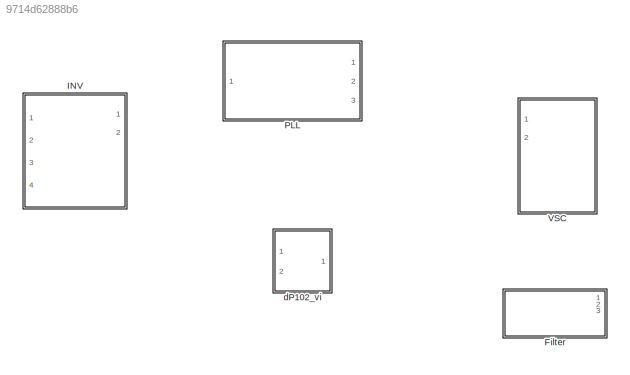
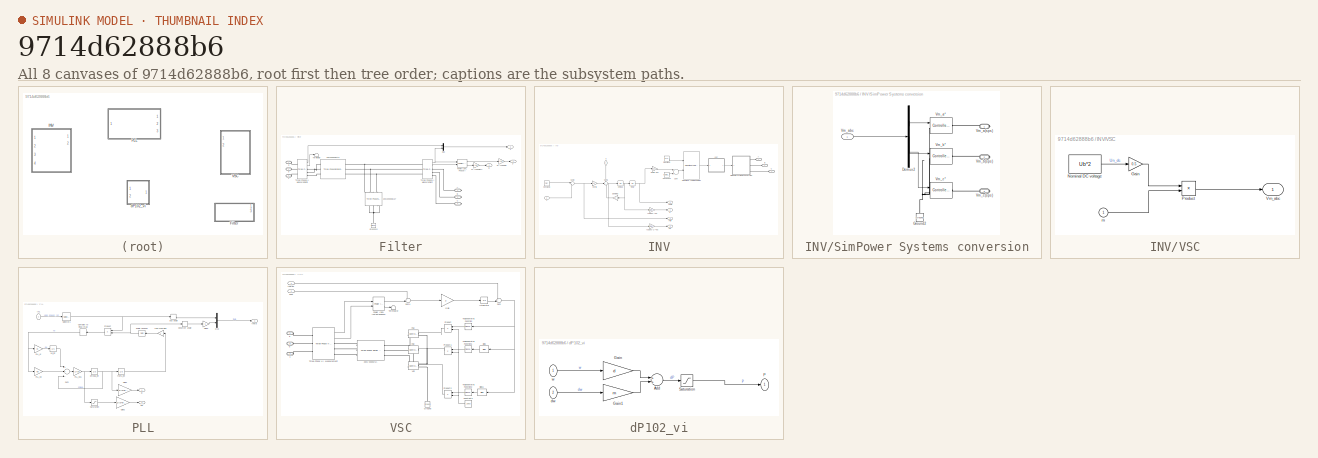
[diagram: thumbnail index - all 8 canvases of the model, root first then tree order]
MODEL slx_9714d62888b6
KIND library
CONFIG AbsTol = auto
CONFIG EnableMultiTasking = on
CONFIG FixedStep = auto
CONFIG MaxStep = auto
CONFIG MinStep = auto
CONFIG RelTol = 1e-3
CONFIG SampleTimeConstraint = Unconstrained
CONFIG Solver = ode45
CONFIG SolverName = ode45
CONFIG StartTime = 0.0
CONFIG StopTime = 10.0
BLOCK [SubSystem] Filter
  Ports = [0, 3, 0, 0, 0, 3, 3]
  RequestExecContextInheritance = off
  Variant = off
BLOCK [Reference] Filter/20kV 2000MVA11  REF=powerlib/Elements/Three-Phase
Series RLC Branch
  AttributesFormatString = \n
  Ports = [0, 0, 0, 0, 0, 3, 3]
  SourceBlock = powerlib/Elements/Three-Phase\nSeries RLC Branch
  SourceProductBaseCode = PS
  SourceProductName = Simscape Power Systems
  SourceType = Three-Phase Series RLC Branch
BLOCK [Reference] Filter/20kV 2000MVA27  REF=powerlib/Elements/Three-Phase
Series RLC Branch
  AttributesFormatString = \n
  Ports = [0, 0, 0, 0, 0, 3, 3]
  SourceBlock = powerlib/Elements/Three-Phase\nSeries RLC Branch
  SourceProductBaseCode = PS
  SourceProductName = Simscape Power Systems
  SourceType = Three-Phase Series RLC Branch
BLOCK [PMIOPort] Filter/A
  Port = 4
  Side = Right
  Tag = PMCPort
BLOCK [PMIOPort] Filter/B
  Port = 5
  Side = Right
  Tag = PMCPort
BLOCK [PMIOPort] Filter/C
  Port = 6
  Side = Right
  Tag = PMCPort
BLOCK [Reference] Filter/Ground13  REF=powerlib/Elements/Ground
  Ports = [0, 0, 0, 0, 0, 1]
  SourceBlock = powerlib/Elements/Ground
  SourceProductBaseCode = PS
  SourceProductName = Simscape Power Systems
  SourceType = Ground
BLOCK [Mux] Filter/Mux
  DisplayOption = bar
  Inputs = 2
  Ports = [2, 1]
BLOCK [Outport] Filter/P
  IconDisplay = Port number
BLOCK [Reference] Filter/Power (3ph, Phasor)  REF=powerlib_meascontrol/Measurements/Power
(3ph, Phasor)
  Ports = [2, 2]
  SourceBlock = powerlib_meascontrol/Measurements/Power\n(3ph, Phasor)
  SourceProductBaseCode = PS
  SourceProductName = Simscape Power Systems
  SourceType = Power (3ph, Phasor)
BLOCK [Outport] Filter/Q
  IconDisplay = Port number
  Port = 2
BLOCK [Terminator] Filter/Terminator
BLOCK [Reference] Filter/Three-Phase V-I Measurement  REF=powerlib/Measurements/Three-Phase
V-I Measurement
  Ports = [0, 2, 0, 0, 0, 3, 3]
  SourceBlock = powerlib/Measurements/Three-Phase\nV-I Measurement
  SourceProductBaseCode = PS
  SourceProductName = Simscape Power Systems
  SourceType = Three-Phase VI Measurement
BLOCK [Reference] Filter/Three-Phase V-I Measurement1  REF=powerlib/Measurements/Three-Phase
V-I Measurement
  Ports = [0, 2, 0, 0, 0, 3, 3]
  SourceBlock = powerlib/Measurements/Three-Phase\nV-I Measurement
  SourceProductBaseCode = PS
  SourceProductName = Simscape Power Systems
  SourceType = Three-Phase VI Measurement
BLOCK [Gain] Filter/W->100MW
  Gain = 1e-8
  OutDataTypeStr = Inherit: Inherit via internal rule
  ParamDataTypeStr = Inherit: Inherit via internal rule
  SaturateOnIntegerOverflow = off
BLOCK [Gain] Filter/W->100MW1
  Gain = 1e-8
  OutDataTypeStr = Inherit: Inherit via internal rule
  ParamDataTypeStr = Inherit: Inherit via internal rule
  SaturateOnIntegerOverflow = off
BLOCK [PMIOPort] Filter/a
  Port = 1
  Side = Left
BLOCK [PMIOPort] Filter/b
  Port = 2
  Side = Left
BLOCK [PMIOPort] Filter/c
  Port = 3
  Side = Left
BLOCK [Outport] Filter/v
  IconDisplay = Port number
  Port = 3
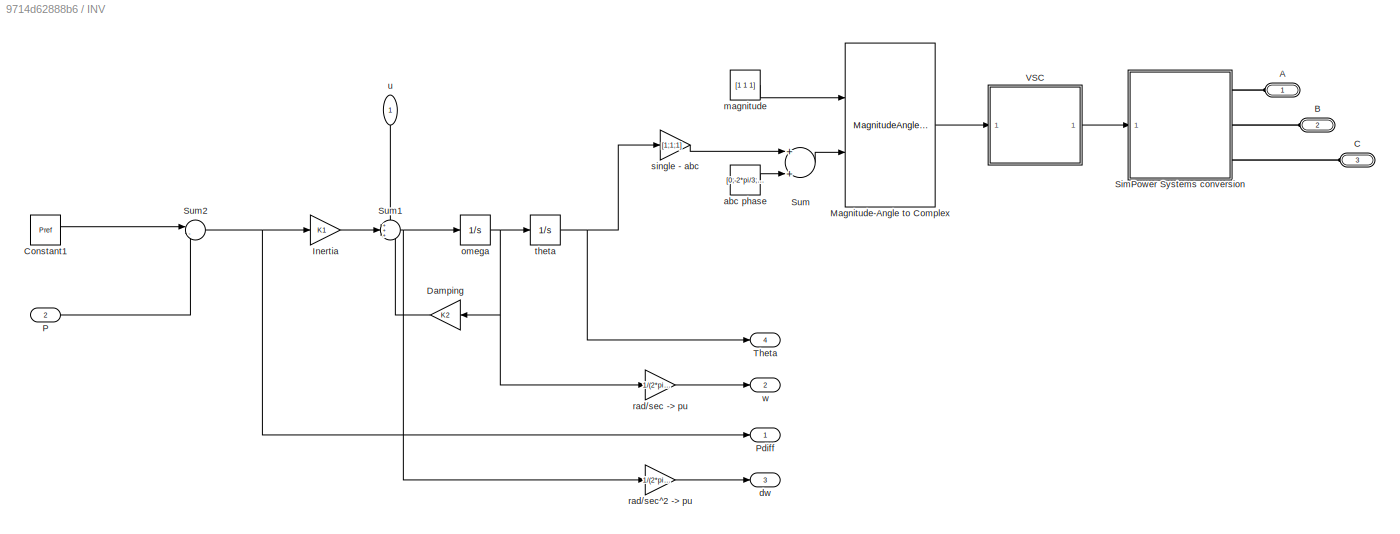
BLOCK [SubSystem] INV
  Ports = [2, 4, 0, 0, 0, 3]
  RequestExecContextInheritance = off
  Variant = off
BLOCK [PMIOPort] INV/A
  Port = 1
  Side = Left
  Tag = PMCPort
BLOCK [PMIOPort] INV/B
  Port = 2
  Side = Left
  Tag = PMCPort
BLOCK [PMIOPort] INV/C
  Port = 3
  Side = Left
  Tag = PMCPort
BLOCK [Constant] INV/Constant1
  Value = Pref
BLOCK [Gain] INV/Damping
  Gain = K2
  OutDataTypeStr = Inherit: Inherit via internal rule
  ParamDataTypeStr = Inherit: Inherit via internal rule
  SaturateOnIntegerOverflow = off
BLOCK [Gain] INV/Inertia
  Gain = K1
  OutDataTypeStr = Inherit: Inherit via internal rule
  ParamDataTypeStr = Inherit: Inherit via internal rule
  SaturateOnIntegerOverflow = off
BLOCK [MagnitudeAngleToComplex] INV/Magnitude-Angle to Complex
  Ports = [2, 1]
BLOCK [Inport] INV/P
  IconDisplay = Port number
  Port = 2
BLOCK [Outport] INV/Pdiff
  IconDisplay = Port number
BLOCK [SubSystem] INV/SimPower Systems conversion
  Ports = [1, 0, 0, 0, 0, 0, 3]
  RequestExecContextInheritance = off
  Variant = off
BLOCK [Demux] INV/SimPower Systems conversion/Demux2
  DisplayOption = bar
  Outputs = 3
  Ports = [1, 3]
BLOCK [Reference] INV/SimPower Systems conversion/Ground2  REF=powerlib/Elements/Ground
  Ports = [0, 0, 0, 0, 0, 1]
  SourceBlock = powerlib/Elements/Ground
  SourceProductBaseCode = PS
  SourceProductName = Simscape Power Systems
  SourceType = Ground
BLOCK [PMIOPort] INV/SimPower Systems conversion/Vm_a(sps)
  Port = 1
  Side = Right
BLOCK [Reference] INV/SimPower Systems conversion/Vm_a*  REF=powerlib/Electrical
Sources/Controlled Voltage Source
  Ports = [1, 0, 0, 0, 0, 1, 1]
  SourceBlock = powerlib/Electrical\nSources/Controlled Voltage Source
  SourceProductBaseCode = PS
  SourceProductName = Simscape Power Systems
  SourceType = Controlled Voltage Source
BLOCK [Inport] INV/SimPower Systems conversion/Vm_abc
  IconDisplay = Port number
BLOCK [PMIOPort] INV/SimPower Systems conversion/Vm_b(sps)
  Port = 2
  Side = Right
BLOCK [Reference] INV/SimPower Systems conversion/Vm_b*  REF=powerlib/Electrical
Sources/Controlled Voltage Source
  Ports = [1, 0, 0, 0, 0, 1, 1]
  SourceBlock = powerlib/Electrical\nSources/Controlled Voltage Source
  SourceProductBaseCode = PS
  SourceProductName = Simscape Power Systems
  SourceType = Controlled Voltage Source
BLOCK [PMIOPort] INV/SimPower Systems conversion/Vm_c(sps)
  Port = 3
  Side = Right
BLOCK [Reference] INV/SimPower Systems conversion/Vm_c*  REF=powerlib/Electrical
Sources/Controlled Voltage Source
  Ports = [1, 0, 0, 0, 0, 1, 1]
  SourceBlock = powerlib/Electrical\nSources/Controlled Voltage Source
  SourceProductBaseCode = PS
  SourceProductName = Simscape Power Systems
  SourceType = Controlled Voltage Source
BLOCK [Sum] INV/Sum
  InputSameDT = off
  OutDataTypeStr = Inherit: Inherit via internal rule
  Ports = [2, 1]
  SaturateOnIntegerOverflow = off
BLOCK [Sum] INV/Sum1
  IconShape = round
  InputSameDT = off
  Inputs = +++
  OutDataTypeStr = Inherit: Inherit via internal rule
  Ports = [3, 1]
  SaturateOnIntegerOverflow = off
BLOCK [Sum] INV/Sum2
  IconShape = round
  InputSameDT = off
  Inputs = |-+
  OutDataTypeStr = Inherit: Inherit via internal rule
  Ports = [2, 1]
  SaturateOnIntegerOverflow = off
BLOCK [Outport] INV/Theta
  IconDisplay = Port number
  Port = 4
BLOCK [SubSystem] INV/VSC
  Ports = [1, 1]
  RequestExecContextInheritance = off
  ShowPortLabels = none
  Variant = off
BLOCK [Gain] INV/VSC/Gain
  Gain = 0.5
  OutDataTypeStr = Inherit: Inherit via internal rule
  ParamDataTypeStr = Inherit: Inherit via internal rule
  SaturateOnIntegerOverflow = off
BLOCK [Constant] INV/VSC/Nominal DC voltage
  Value = Ub*2
BLOCK [Product] INV/VSC/Product
  InputSameDT = off
  OutDataTypeStr = Inherit: Inherit via internal rule
  Ports = [2, 1]
  SaturateOnIntegerOverflow = off
BLOCK [Outport] INV/VSC/Vm_abc
  IconDisplay = Port number
  InitialOutput = 0
BLOCK [Inport] INV/VSC/m
  IconDisplay = Port number
BLOCK [Constant] INV/abc phase
  Value = [0;-2*pi/3;-4*pi/3]
BLOCK [Outport] INV/dw
  IconDisplay = Port number
  Port = 3
BLOCK [Constant] INV/magnitude
  Value = [1 1 1]
BLOCK [Integrator] INV/omega
  Ports = [1, 1]
BLOCK [Gain] INV/rad//sec -> pu
  Gain = 1/(2*pi*50)
  OutDataTypeStr = Inherit: Inherit via internal rule
  ParamDataTypeStr = Inherit: Inherit via internal rule
  SaturateOnIntegerOverflow = off
BLOCK [Gain] INV/rad//sec^2 -> pu
  Gain = 1/(2*pi*50)
  OutDataTypeStr = Inherit: Inherit via internal rule
  ParamDataTypeStr = Inherit: Inherit via internal rule
  SaturateOnIntegerOverflow = off
BLOCK [Gain] INV/single - abc
  Gain = [1;1;1]
  OutDataTypeStr = Inherit: Inherit via internal rule
  ParamDataTypeStr = Inherit: Inherit via internal rule
  SaturateOnIntegerOverflow = off
BLOCK [Integrator] INV/theta
  InitialCondition = ang/180*pi
  Ports = [1, 1]
BLOCK [Inport] INV/u
  IconDisplay = Port number
BLOCK [Outport] INV/w
  IconDisplay = Port number
  Port = 2
BLOCK [SubSystem] PLL
  Ports = [1, 3]
  RequestExecContextInheritance = off
  ShowPortLabels = SignalName
  Variant = off
BLOCK [ComplexToRealImag] PLL/Complex to Real-Imag
  Output = Imag
  Ports = [1, 1]
BLOCK [Gain] PLL/Gain1
  Gain = 1/(2*pi*50)
  OutDataTypeStr = Inherit: Inherit via internal rule
  ParamDataTypeStr = Inherit: Inherit via internal rule
  SaturateOnIntegerOverflow = off
BLOCK [Gain] PLL/Gain2
  Gain = 1/(2*pi*50)
  OutDataTypeStr = Inherit: Inherit via internal rule
  ParamDataTypeStr = Inherit: Inherit via internal rule
  SaturateOnIntegerOverflow = off
BLOCK [Gain] PLL/Gain3
  Gain = -1
  OutDataTypeStr = Inherit: Inherit via internal rule
  ParamDataTypeStr = Inherit: Inherit via internal rule
  SaturateOnIntegerOverflow = off
BLOCK [Inport] PLL/In1
  IconDisplay = Port number
BLOCK [Mux] PLL/Mux
  DisplayOption = bar
  Inputs = 2
  Ports = [2, 1]
BLOCK [Gain] PLL/PLL_Ki
  Gain = Ki
  OutDataTypeStr = Inherit: Inherit via internal rule
  ParamDataTypeStr = Inherit: Inherit via internal rule
  SaturateOnIntegerOverflow = off
BLOCK [Gain] PLL/PLL_Kp
  Gain = Kp
  OutDataTypeStr = Inherit: Inherit via internal rule
  ParamDataTypeStr = Inherit: Inherit via internal rule
  SaturateOnIntegerOverflow = off
BLOCK [Gain] PLL/PLL_Kp1
  Gain = 1/tau
  OutDataTypeStr = Inherit: Inherit via internal rule
  ParamDataTypeStr = Inherit: Inherit via internal rule
  SaturateOnIntegerOverflow = off
BLOCK [Product] PLL/Product
  InputSameDT = off
  OutDataTypeStr = Inherit: Inherit via internal rule
  Ports = [2, 1]
  RndMeth = Floor
  SaturateOnIntegerOverflow = off
BLOCK [Saturate] PLL/Saturation
  InputPortMap = u0
  LowerLimit = -6*2*pi
  Ports = [1, 1]
  UpperLimit = 6*2*pi
BLOCK [Selector] PLL/Selector1
  IndexOptions = Index vector (dialog)
  Indices = 1
  InputPortWidth = 3
  OutputSizes = 1
  Ports = [1, 1]
BLOCK [Sum] PLL/Sum
  InputSameDT = off
  Inputs = ++-
  OutDataTypeStr = Inherit: Inherit via internal rule
  Ports = [3, 1]
  SaturateOnIntegerOverflow = off
BLOCK [Math] PLL/angle->phasor
  Ports = [1, 1]
BLOCK [ComplexToMagnitudeAngle] PLL/bus angle
  Output = Angle
  Ports = [1, 1]
BLOCK [Outport] PLL/dw
  IconDisplay = Port number
  Port = 2
BLOCK [ComplexToMagnitudeAngle] PLL/observer angle
  Output = Angle
  Ports = [1, 1]
BLOCK [Integrator] PLL/omega_int
  InitialCondition = omega0
  Ports = [1, 1]
BLOCK [Gain] PLL/real->complex
  Gain = -j
  OutDataTypeStr = Inherit: Inherit via internal rule
  ParamDataTypeStr = Inherit: Inherit via internal rule
  SaturateOnIntegerOverflow = off
BLOCK [Outport] PLL/theta
  IconDisplay = Port number
  Port = 3
BLOCK [Integrator] PLL/theta_int
  InitialCondition = theta0/180*pi
  Ports = [1, 1]
BLOCK [Integrator] PLL/vq_int
  Ports = [1, 1]
BLOCK [Outport] PLL/w
  IconDisplay = Port number
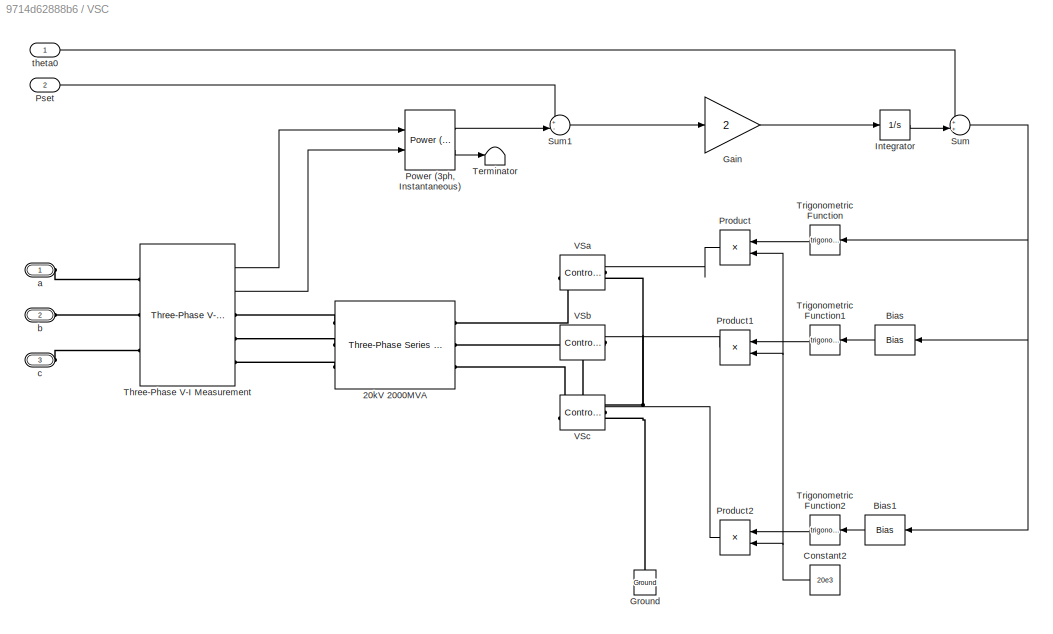
BLOCK [SubSystem] VSC
  Ports = [2, 0, 0, 0, 0, 3]
  RequestExecContextInheritance = off
  Variant = off
BLOCK [Reference] VSC/20kV 2000MVA  REF=powerlib/Elements/Three-Phase
Series RLC Branch
  AttributesFormatString = \n
  Ports = [0, 0, 0, 0, 0, 3, 3]
  SourceBlock = powerlib/Elements/Three-Phase\nSeries RLC Branch
  SourceProductBaseCode = PS
  SourceProductName = Simscape Power Systems
  SourceType = Three-Phase Series RLC Branch
BLOCK [Bias] VSC/Bias
  Bias = -2*pi/3
  SaturateOnIntegerOverflow = off
BLOCK [Bias] VSC/Bias1
  Bias = -4*pi/3
  SaturateOnIntegerOverflow = off
BLOCK [Constant] VSC/Constant2
  Value = 20e3
BLOCK [Gain] VSC/Gain
  Gain = 2
  OutDataTypeStr = Inherit: Inherit via internal rule
  ParamDataTypeStr = Inherit: Inherit via internal rule
  SaturateOnIntegerOverflow = off
BLOCK [Reference] VSC/Ground  REF=powerlib/Elements/Ground
  Ports = [0, 0, 0, 0, 0, 1]
  SourceBlock = powerlib/Elements/Ground
  SourceProductBaseCode = PS
  SourceProductName = Simscape Power Systems
  SourceType = Ground
BLOCK [Integrator] VSC/Integrator
  Ports = [1, 1]
BLOCK [Reference] VSC/Power (3ph, Instantaneous)  REF=powerlib_meascontrol/Measurements/Power
(3ph, Instantaneous)
  Ports = [2, 2]
  SourceBlock = powerlib_meascontrol/Measurements/Power\n(3ph, Instantaneous)
  SourceProductBaseCode = PS
  SourceProductName = Simscape Power Systems
  SourceType = Power (3ph, Instantaneous)
BLOCK [Product] VSC/Product
  InputSameDT = off
  OutDataTypeStr = Inherit: Inherit via internal rule
  Ports = [2, 1]
  RndMeth = Floor
  SaturateOnIntegerOverflow = off
BLOCK [Product] VSC/Product1
  InputSameDT = off
  OutDataTypeStr = Inherit: Inherit via internal rule
  Ports = [2, 1]
  RndMeth = Floor
  SaturateOnIntegerOverflow = off
BLOCK [Product] VSC/Product2
  InputSameDT = off
  OutDataTypeStr = Inherit: Inherit via internal rule
  Ports = [2, 1]
  RndMeth = Floor
  SaturateOnIntegerOverflow = off
BLOCK [Inport] VSC/Pset
  IconDisplay = Port number
  Port = 2
BLOCK [Sum] VSC/Sum
  IconShape = round
  InputSameDT = off
  Inputs = ++|
  OutDataTypeStr = Inherit: Inherit via internal rule
  Ports = [2, 1]
  SaturateOnIntegerOverflow = off
BLOCK [Sum] VSC/Sum1
  IconShape = round
  InputSameDT = off
  Inputs = +-|
  OutDataTypeStr = Inherit: Inherit via internal rule
  Ports = [2, 1]
  SaturateOnIntegerOverflow = off
BLOCK [Terminator] VSC/Terminator
BLOCK [Reference] VSC/Three-Phase V-I Measurement  REF=powerlib/Measurements/Three-Phase
V-I Measurement
  Ports = [0, 2, 0, 0, 0, 3, 3]
  SourceBlock = powerlib/Measurements/Three-Phase\nV-I Measurement
  SourceProductBaseCode = PS
  SourceProductName = Simscape Power Systems
  SourceType = Three-Phase VI Measurement
BLOCK [Trigonometry] VSC/Trigonometric Function
  Ports = [1, 1]
BLOCK [Trigonometry] VSC/Trigonometric Function1
  Ports = [1, 1]
BLOCK [Trigonometry] VSC/Trigonometric Function2
  Ports = [1, 1]
BLOCK [Reference] VSC/VSa  REF=powerlib/Electrical
Sources/Controlled Voltage Source
  Ports = [1, 0, 0, 0, 0, 1, 1]
  SourceBlock = powerlib/Electrical\nSources/Controlled Voltage Source
  SourceProductBaseCode = PS
  SourceProductName = Simscape Power Systems
  SourceType = Controlled Voltage Source
BLOCK [Reference] VSC/VSb  REF=powerlib/Electrical
Sources/Controlled Voltage Source
  Ports = [1, 0, 0, 0, 0, 1, 1]
  SourceBlock = powerlib/Electrical\nSources/Controlled Voltage Source
  SourceProductBaseCode = PS
  SourceProductName = Simscape Power Systems
  SourceType = Controlled Voltage Source
BLOCK [Reference] VSC/VSc  REF=powerlib/Electrical
Sources/Controlled Voltage Source
  Ports = [1, 0, 0, 0, 0, 1, 1]
  SourceBlock = powerlib/Electrical\nSources/Controlled Voltage Source
  SourceProductBaseCode = PS
  SourceProductName = Simscape Power Systems
  SourceType = Controlled Voltage Source
BLOCK [PMIOPort] VSC/a
  Port = 1
  Side = Left
BLOCK [PMIOPort] VSC/b
  Port = 2
  Side = Left
BLOCK [PMIOPort] VSC/c
  Port = 3
  Side = Left
BLOCK [Inport] VSC/theta0
  IconDisplay = Port number
BLOCK [SubSystem] dP102_vi
  Ports = [2, 1]
  RequestExecContextInheritance = off
  ShowPortLabels = SignalName
  Variant = off
BLOCK [Sum] dP102_vi/Add
  InputSameDT = off
  OutDataTypeStr = Inherit: Inherit via internal rule
  Ports = [2, 1]
  SaturateOnIntegerOverflow = off
BLOCK [Gain] dP102_vi/Gain
  Gain = d
  OutDataTypeStr = Inherit: Inherit via internal rule
  ParamDataTypeStr = Inherit: Inherit via internal rule
  SaturateOnIntegerOverflow = off
BLOCK [Gain] dP102_vi/Gain1
  Gain = m
  OutDataTypeStr = Inherit: Inherit via internal rule
  ParamDataTypeStr = Inherit: Inherit via internal rule
  SaturateOnIntegerOverflow = off
BLOCK [Outport] dP102_vi/P
  IconDisplay = Port number
BLOCK [Saturate] dP102_vi/Saturation
  InputPortMap = u0
  LowerLimit = -visat
  Ports = [1, 1]
  UpperLimit = visat
  ZeroCross = off
BLOCK [Inport] dP102_vi/dw
  IconDisplay = Port number
  Port = 2
BLOCK [Inport] dP102_vi/w
  IconDisplay = Port number
LINE Filter/Mux:1 -> Filter/v:1
LINE Filter/Power (3ph, Phasor):1 -> Filter/W->100MW:1
LINE Filter/Power (3ph, Phasor):2 -> Filter/W->100MW1:1
LINE Filter/Three-Phase V-I Measurement1:1 -> Filter/Mux:1
LINE Filter/Three-Phase V-I Measurement1:2 -> Filter/Terminator:1
NET Filter/Three-Phase V-I Measurement:1 -> Filter/Mux:2, Filter/Power (3ph, Phasor):1
LINE Filter/Three-Phase V-I Measurement:2 -> Filter/Power (3ph, Phasor):2
LINE Filter/W->100MW1:1 -> Filter/Q:1
LINE Filter/W->100MW:1 -> Filter/P:1
LINE INV/Constant1:1 -> INV/Sum2:1
LINE INV/Damping:1 -> INV/Sum1:3
LINE INV/Inertia:1 -> INV/Sum1:2
LINE INV/Magnitude-Angle to Complex:1 -> INV/VSC:1
LINE INV/P:1 -> INV/Sum2:2
LINE INV/SimPower Systems conversion/Demux2:1 -> INV/SimPower Systems conversion/Vm_a*:1
LINE INV/SimPower Systems conversion/Demux2:2 -> INV/SimPower Systems conversion/Vm_b*:1
LINE INV/SimPower Systems conversion/Demux2:3 -> INV/SimPower Systems conversion/Vm_c*:1
LINE INV/SimPower Systems conversion/Vm_abc:1 -> INV/SimPower Systems conversion/Demux2:1
NET INV/Sum1:1 -> INV/omega:1, INV/rad//sec^2 -> pu:1
NET INV/Sum2:1 -> INV/Inertia:1, INV/Pdiff:1
LINE INV/Sum:1 -> INV/Magnitude-Angle to Complex:2
LINE INV/VSC/Gain:1 -> INV/VSC/Product:1
LINE INV/VSC/Nominal DC voltage:1 -> INV/VSC/Gain:1
LINE INV/VSC/Product:1 -> INV/VSC/Vm_abc:1
LINE INV/VSC/m:1 -> INV/VSC/Product:2
LINE INV/VSC:1 -> INV/SimPower Systems conversion:1
LINE INV/abc phase:1 -> INV/Sum:2
LINE INV/magnitude:1 -> INV/Magnitude-Angle to Complex:1
NET INV/omega:1 -> INV/Damping:1, INV/rad//sec -> pu:1, INV/theta:1
LINE INV/rad//sec -> pu:1 -> INV/w:1
LINE INV/rad//sec^2 -> pu:1 -> INV/dw:1
LINE INV/single - abc:1 -> INV/Sum:1
NET INV/theta:1 -> INV/Theta:1, INV/single - abc:1
LINE INV/u:1 -> INV/Sum1:1
LINE VSC/Bias1:1 -> VSC/Trigonometric Function2:1
LINE VSC/Bias:1 -> VSC/Trigonometric Function1:1
NET VSC/Constant2:1 -> VSC/Product1:2, VSC/Product2:2, VSC/Product:2
LINE VSC/Gain:1 -> VSC/Integrator:1
LINE VSC/Integrator:1 -> VSC/Sum:2
LINE VSC/Power (3ph, Instantaneous):1 -> VSC/Sum1:2
LINE VSC/Power (3ph, Instantaneous):2 -> VSC/Terminator:1
LINE VSC/Product1:1 -> VSC/VSb:1
LINE VSC/Product2:1 -> VSC/VSc:1
LINE VSC/Product:1 -> VSC/VSa:1
LINE VSC/Pset:1 -> VSC/Sum1:1
LINE VSC/Sum1:1 -> VSC/Gain:1
NET VSC/Sum:1 -> VSC/Bias1:1, VSC/Bias:1, VSC/Trigonometric Function:1
LINE VSC/Three-Phase V-I Measurement:1 -> VSC/Power (3ph, Instantaneous):1
LINE VSC/Three-Phase V-I Measurement:2 -> VSC/Power (3ph, Instantaneous):2
LINE VSC/Trigonometric Function1:1 -> VSC/Product1:1
LINE VSC/Trigonometric Function2:1 -> VSC/Product2:1
LINE VSC/Trigonometric Function:1 -> VSC/Product:1
LINE VSC/theta0:1 -> VSC/Sum:1
LINE dP102_vi/Add:1 -> dP102_vi/Saturation:1
LINE dP102_vi/Gain1:1 -> dP102_vi/Add:2
LINE dP102_vi/Gain:1 -> dP102_vi/Add:1
LINE dP102_vi/Saturation:1 -> dP102_vi/P:1
LINE dP102_vi/dw:1 -> dP102_vi/Gain1:1
LINE dP102_vi/w:1 -> dP102_vi/Gain:1
PLINE Filter/20kV 2000MVA11:LConn1 -- Filter/Three-Phase V-I Measurement1:RConn1
PLINE Filter/20kV 2000MVA11:LConn2 -- Filter/Three-Phase V-I Measurement1:RConn2
PLINE Filter/20kV 2000MVA11:LConn3 -- Filter/Three-Phase V-I Measurement1:RConn3
PNET net1: Filter/20kV 2000MVA11:RConn1 -- Filter/20kV 2000MVA27:RConn1 -- Filter/Three-Phase V-I Measurement:LConn1
PNET net2: Filter/20kV 2000MVA11:RConn2 -- Filter/20kV 2000MVA27:RConn2 -- Filter/Three-Phase V-I Measurement:LConn2
PNET net3: Filter/20kV 2000MVA11:RConn3 -- Filter/20kV 2000MVA27:RConn3 -- Filter/Three-Phase V-I Measurement:LConn3
PNET net4: Filter/20kV 2000MVA27:LConn1 -- Filter/20kV 2000MVA27:LConn2 -- Filter/20kV 2000MVA27:LConn3 -- Filter/Ground13:LConn1
PLINE Filter/A:RConn1 -- Filter/Three-Phase V-I Measurement:RConn1
PLINE Filter/B:RConn1 -- Filter/Three-Phase V-I Measurement:RConn2
PLINE Filter/C:RConn1 -- Filter/Three-Phase V-I Measurement:RConn3
PLINE Filter/Three-Phase V-I Measurement1:LConn1 -- Filter/a:RConn1
PLINE Filter/Three-Phase V-I Measurement1:LConn2 -- Filter/b:RConn1
PLINE Filter/Three-Phase V-I Measurement1:LConn3 -- Filter/c:RConn1
PLINE INV/A:RConn1 -- INV/SimPower Systems conversion:RConn1
PLINE INV/B:RConn1 -- INV/SimPower Systems conversion:RConn2
PLINE INV/C:RConn1 -- INV/SimPower Systems conversion:RConn3
PNET net5: INV/SimPower Systems conversion/Ground2:LConn1 -- INV/SimPower Systems conversion/Vm_a*:LConn1 -- INV/SimPower Systems conversion/Vm_b*:LConn1 -- INV/SimPower Systems conversion/Vm_c*:LConn1
PLINE INV/SimPower Systems conversion/Vm_a(sps):RConn1 -- INV/SimPower Systems conversion/Vm_a*:RConn1
PLINE INV/SimPower Systems conversion/Vm_b(sps):RConn1 -- INV/SimPower Systems conversion/Vm_b*:RConn1
PLINE INV/SimPower Systems conversion/Vm_c(sps):RConn1 -- INV/SimPower Systems conversion/Vm_c*:RConn1
PLINE VSC/20kV 2000MVA:LConn1 -- VSC/Three-Phase V-I Measurement:RConn1
PLINE VSC/20kV 2000MVA:LConn2 -- VSC/Three-Phase V-I Measurement:RConn2
PLINE VSC/20kV 2000MVA:LConn3 -- VSC/Three-Phase V-I Measurement:RConn3
PLINE VSC/20kV 2000MVA:RConn1 -- VSC/VSa:RConn1
PLINE VSC/20kV 2000MVA:RConn2 -- VSC/VSb:RConn1
PLINE VSC/20kV 2000MVA:RConn3 -- VSC/VSc:RConn1
PNET net6: VSC/Ground:LConn1 -- VSC/VSa:LConn1 -- VSC/VSb:LConn1 -- VSC/VSc:LConn1
PLINE VSC/Three-Phase V-I Measurement:LConn1 -- VSC/a:RConn1
PLINE VSC/Three-Phase V-I Measurement:LConn2 -- VSC/b:RConn1
PLINE VSC/Three-Phase V-I Measurement:LConn3 -- VSC/c:RConn1
note: NET lines group one-source signal fan-out (src -> all destinations, sorted); 1:1 wires keep LINE; PNET lines group multi-terminal physical nets as a canonical sorted terminal list (undirected conserving connections); 2-terminal nets keep the pairwise PLINE form
